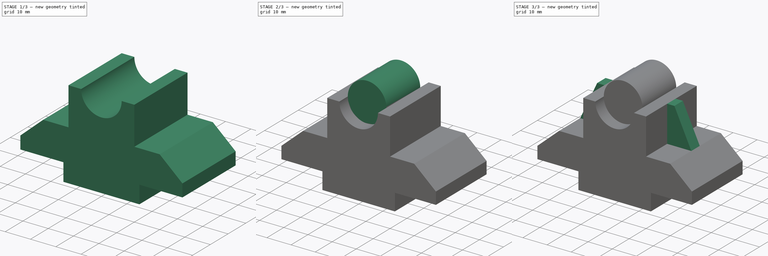
[diagram: build sequence overview — one tinted view per stage of 3, left to right]
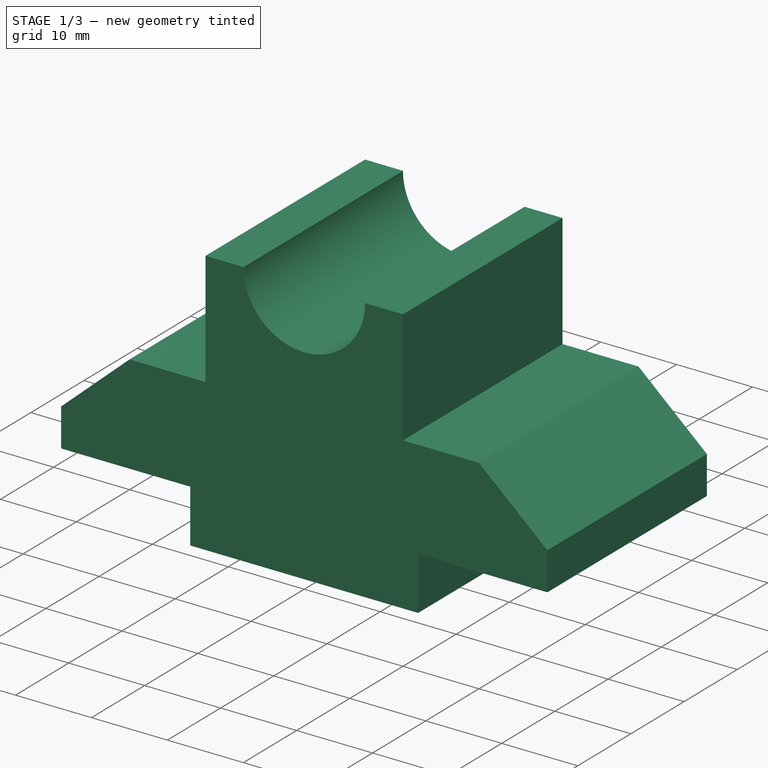
[diagram: stage 1 of 3 — iso view after this stage's code; geometry added in this stage tinted green]
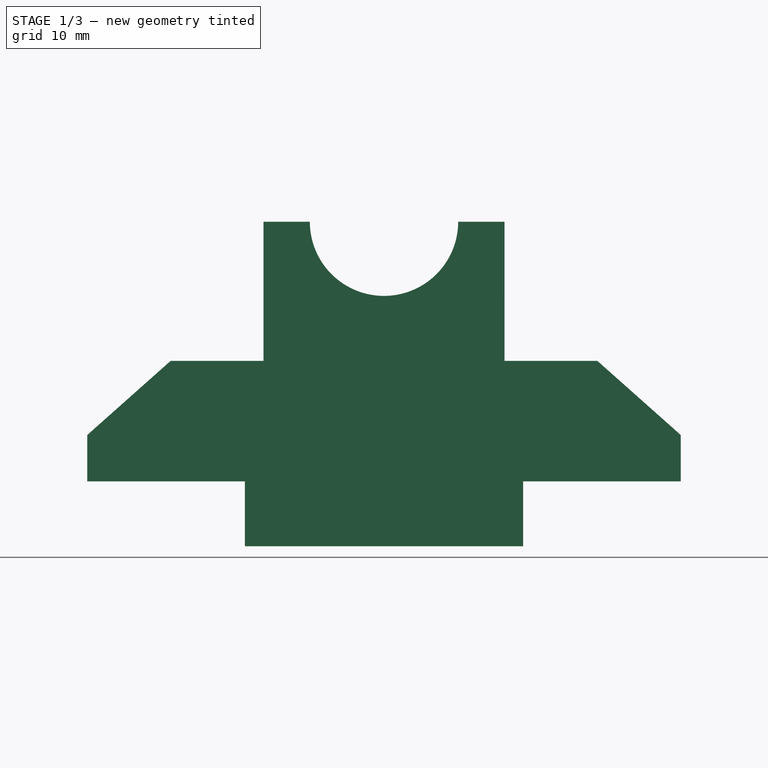
[diagram: stage 1 of 3 — front view after this stage's code; geometry added in this stage tinted green]
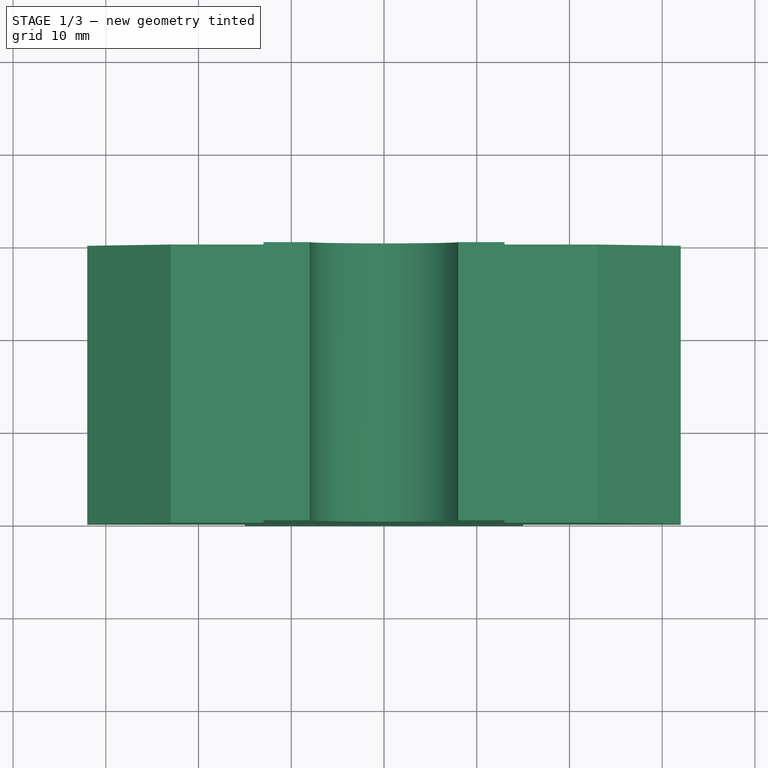
[diagram: stage 1 of 3 — top view after this stage's code; geometry added in this stage tinted green]
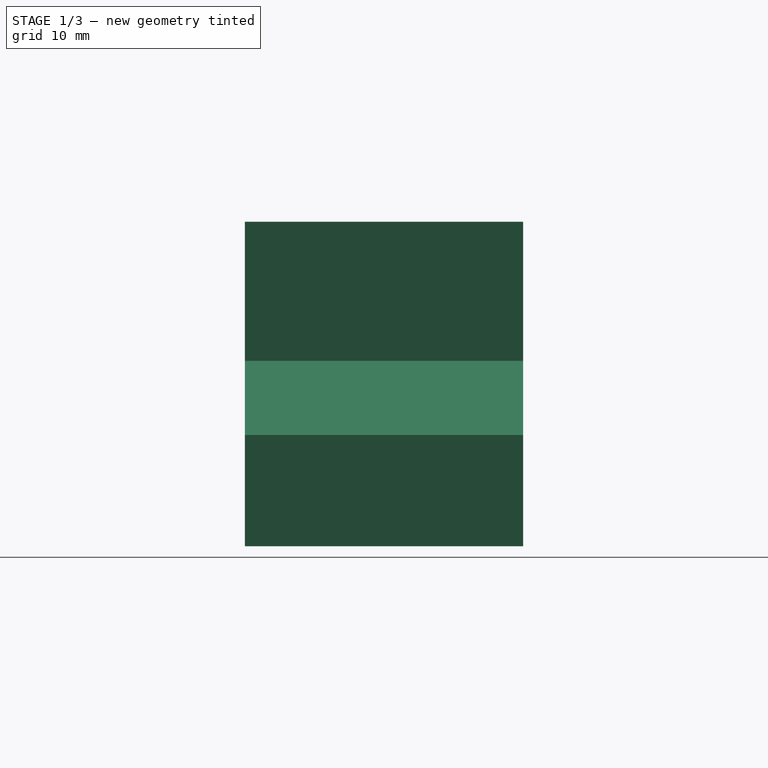
[diagram: stage 1 of 3 — right view after this stage's code; geometry added in this stage tinted green]
FCSTD DOCUMENT  (FreeCAD 1.0R39109 (Git))
Label: 7.4
License: All rights reserved
LicenseURL: https://en.wikipedia.org/wiki/All_rights_reserved
objects: Sketcher::SketchObject×7, PartDesign::Pad×3, PartDesign::Pocket×3, PartDesign::Body×1
note: 33 computed .brp shape members not serialized (recipe doc carries the construction recipe); baked Part::Feature solids carry a one-line shape summary decoded from their .brp

FEATURE [Sketcher::SketchObject] Sketch
  ArcFitTolerance = 1e-06
  AttachmentSupport = -> [XZ_Plane]
  FullyConstrained = true
  MakeInternals = false
  MapMode = 5
  Placement = pos=(0,0,0) rot=(1,0,0;1.5708rad)
  sketch-geometry (14):
    g0: LineSegment StartX=-15 StartY=-14.954 StartZ=0 EndX=15 EndY=-14.954 EndZ=0
    g1: LineSegment StartX=15 StartY=-14.954 StartZ=0 EndX=15 EndY=-7.95402 EndZ=0
    g2: LineSegment StartX=15 StartY=-7.95402 StartZ=0 EndX=32 EndY=-7.95402 EndZ=0
    g3: LineSegment StartX=32 StartY=-7.95402 StartZ=0 EndX=32 EndY=-2.95402 EndZ=0
    g4: LineSegment StartX=32 StartY=-2.95402 StartZ=0 EndX=23 EndY=5.04598 EndZ=0
    g5: LineSegment StartX=23 StartY=5.04598 StartZ=0 EndX=13 EndY=5.04598 EndZ=0
    g6: LineSegment StartX=13 StartY=5.04598 StartZ=0 EndX=13 EndY=20.046 EndZ=0
    g7: LineSegment StartX=13 StartY=20.046 StartZ=0 EndX=-13 EndY=20.046 EndZ=0
    g8: LineSegment StartX=-13 StartY=20.046 StartZ=0 EndX=-13 EndY=5.04598 EndZ=0
    g9: LineSegment StartX=-13 StartY=5.04598 StartZ=0 EndX=-23 EndY=5.04598 EndZ=0
    g10: LineSegment StartX=-23 StartY=5.04598 StartZ=0 EndX=-32 EndY=-2.95402 EndZ=0
    g11: LineSegment StartX=-32 StartY=-2.95402 StartZ=0 EndX=-32 EndY=-7.95402 EndZ=0
    g12: LineSegment StartX=-32 StartY=-7.95402 StartZ=0 EndX=-15 EndY=-7.95402 EndZ=0
    g13: LineSegment StartX=-15 StartY=-7.95402 StartZ=0 EndX=-15 EndY=-14.954 EndZ=0
  constraints (40):
    c: Coincident(g0,g1)
    c: Coincident(g1,g2)
    c: Coincident(g2,g3)
    c: Coincident(g3,g4)
    c: Coincident(g4,g5)
    c: Coincident(g5,g6)
    c: Coincident(g6,g7)
    c: Coincident(g7,g8)
    c: Coincident(g8,g9)
    c: Coincident(g9,g10)
    c: Coincident(g10,g11)
    c: Coincident(g11,g12)
    c: Coincident(g12,g13)
    c: Coincident(g13,g0)
    c: Horizontal(g9,g8)
    c: Horizontal(g8,g5)
    c: Horizontal(g5,g4)
    c: Horizontal(g11,g12)
    c: Horizontal(g12,g1)
    c: Horizontal(g1,g2)
    c: Symmetric(g0,g0,g-2)
    c: Symmetric(g7,g6,g-2)
    c: Vertical(g12,g0)
    c: Vertical(g0,g1)
    c: DistanceX(g0,g0) = 30
    c: DistanceY(g13,g13) = 7
    c: DistanceX(g2,g2) = 17
    c: DistanceX(g12,g12) = 17
    c: Distance(g11,g11) = 5
    c: DistanceY(g3,g3) = 5
    c: Vertical(g11,g10)
    c: Vertical(g3,g2)
    c: DistanceX(g7,g7) = 26
    c: Distance(g6,g6) = 15
    c: Vertical(g5,g6)
    c: Vertical(g7,g8)
    c: DistanceX(g9,g9) = 10
    c: DistanceX(g5,g5) = 10
    c: DistanceY(g0,g8) = 20
    c: Block(g7)
FEATURE [PartDesign::Pad] Pad
  Direction = (0,-1,2e-16)
  Length = 30
  Length2 = 10
  Placement = pos=(0,0,0) rot=(1,0,0;1.5708rad)
  Profile = -> Sketch
  ReferenceAxis = -> Sketch [N_Axis]
  Refine = true
  Suppressed = false
  Type = 0
FEATURE [Sketcher::SketchObject] Sketch001
  ArcFitTolerance = 1e-06
  AttachmentSupport = -> [Pad]
  FullyConstrained = true
  MakeInternals = false
  MapMode = 5
  Placement = pos=(0,-30,0) rot=(1,0,0;1.5708rad)
FEATURE [Sketcher::SketchObject] Sketch002
  ArcFitTolerance = 1e-06
  AttachmentSupport = -> [Pad]
  ExternalGeometry = -> [Pad]
  FullyConstrained = true
  MakeInternals = false
  MapMode = 5
  Placement = pos=(0,-30,0) rot=(1,0,0;1.5708rad)
  sketch-geometry (1):
    g0: Circle CenterX=0 CenterY=20.046 CenterZ=0 NormalX=0 NormalY=0 NormalZ=1 AngleXU=0 Radius=8
  constraints (3):
    c: Diameter(g0) = 16
    c: PointOnObject(g0,g-2)
    c: Block(g0)
FEATURE [PartDesign::Pocket] Pocket
  BaseFeature = -> Pad
  Direction = (0,1,-2e-16)
  Length = 30
  Length2 = 5
  Placement = pos=(0,0,0) rot=(1,0,0;1.5708rad)
  Profile = -> Sketch002
  ReferenceAxis = -> Sketch002 [N_Axis]
  Refine = true
  Suppressed = false
  Type = 0
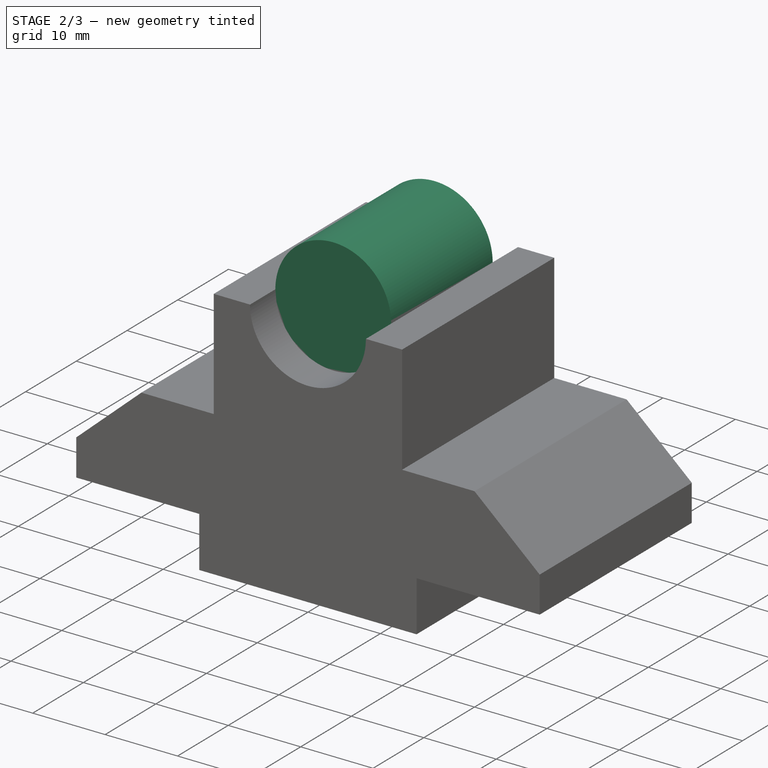
[diagram: stage 2 of 3 — iso view after this stage's code; geometry added in this stage tinted green]
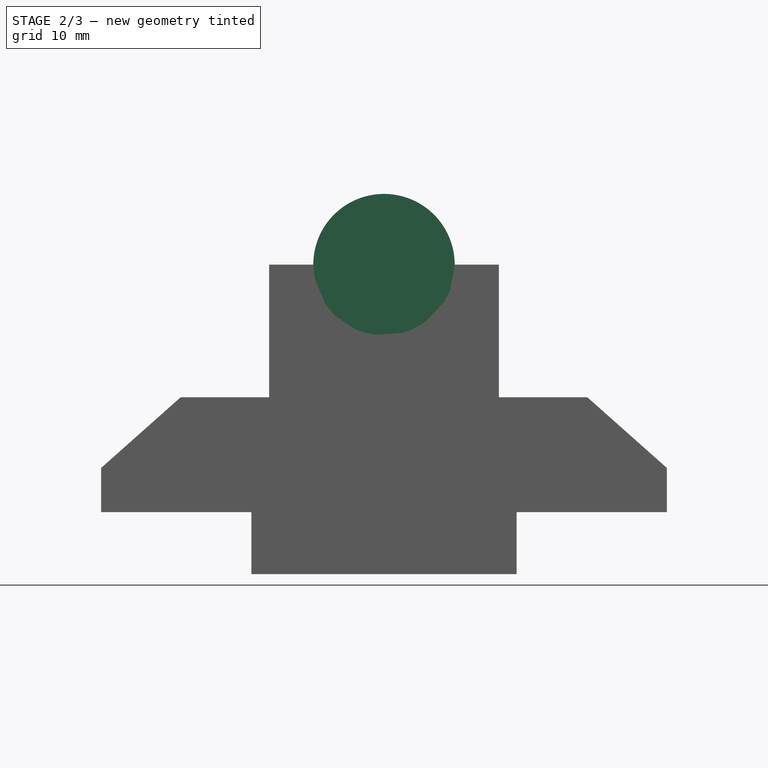
[diagram: stage 2 of 3 — front view after this stage's code; geometry added in this stage tinted green]
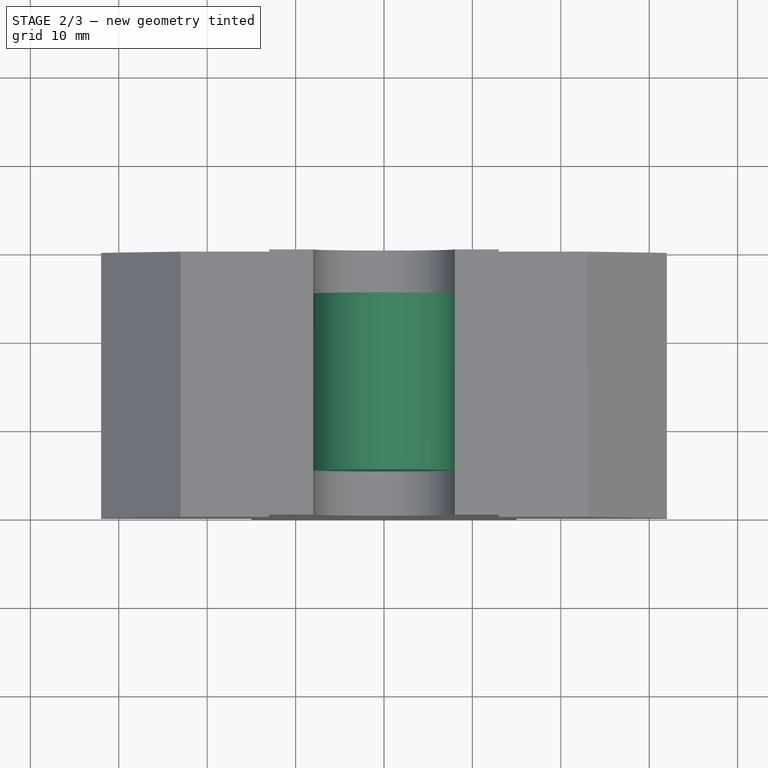
[diagram: stage 2 of 3 — top view after this stage's code; geometry added in this stage tinted green]
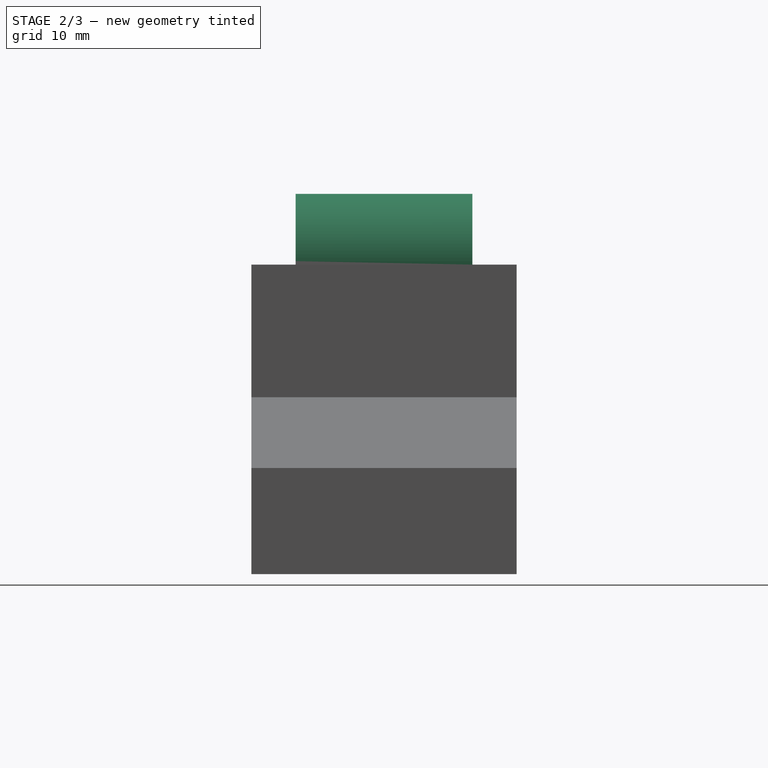
[diagram: stage 2 of 3 — right view after this stage's code; geometry added in this stage tinted green]
FEATURE [Sketcher::SketchObject] Sketch003
  ArcFitTolerance = 1e-06
  AttachmentSupport = -> [Pocket]
  ExternalGeometry = -> [Pocket]
  FullyConstrained = true
  MakeInternals = false
  MapMode = 5
  Placement = pos=(0,-30,0) rot=(1,0,0;1.5708rad)
  sketch-geometry (1):
    g0: Circle CenterX=0 CenterY=20.046 CenterZ=0 NormalX=0 NormalY=0 NormalZ=1 AngleXU=0 Radius=8
  constraints (3):
    c: Coincident(g0,g-3)
    c: PointOnObject(g-3,g0)
    c: Block(g0)
FEATURE [PartDesign::Pad] Pad001
  BaseFeature = -> Pocket
  Direction = (0,-1,2e-16)
  Length = 25
  Length2 = 10
  Placement = pos=(0,0,0) rot=(1,0,0;1.5708rad)
  Profile = -> Sketch003 [Edge1]
  ReferenceAxis = -> Sketch003 [N_Axis]
  Refine = true
  Reversed = true
  Suppressed = false
  Type = 0
FEATURE [Sketcher::SketchObject] Sketch004
  ArcFitTolerance = 1e-06
  AttachmentSupport = -> [Pad001]
  ExternalGeometry = -> [Pad001]
  FullyConstrained = true
  MakeInternals = false
  MapMode = 5
  Placement = pos=(0,-30,7.4e-15) rot=(1,0,0;1.5708rad)
  sketch-geometry (1):
    g0: Circle CenterX=0 CenterY=20.046 CenterZ=0 NormalX=0 NormalY=0 NormalZ=1 AngleXU=0 Radius=8
  constraints (3):
    c: Coincident(g0,g-3)
    c: Equal(g0,g-3)
    c: Block(g0)
FEATURE [PartDesign::Pocket] Pocket001
  BaseFeature = -> Pad001
  Direction = (0,1,-2e-16)
  Length = 5
  Length2 = 5
  Placement = pos=(0,0,0) rot=(1,0,0;1.5708rad)
  Profile = -> Sketch004
  ReferenceAxis = -> Sketch004 [N_Axis]
  Refine = true
  Suppressed = false
  Type = 0
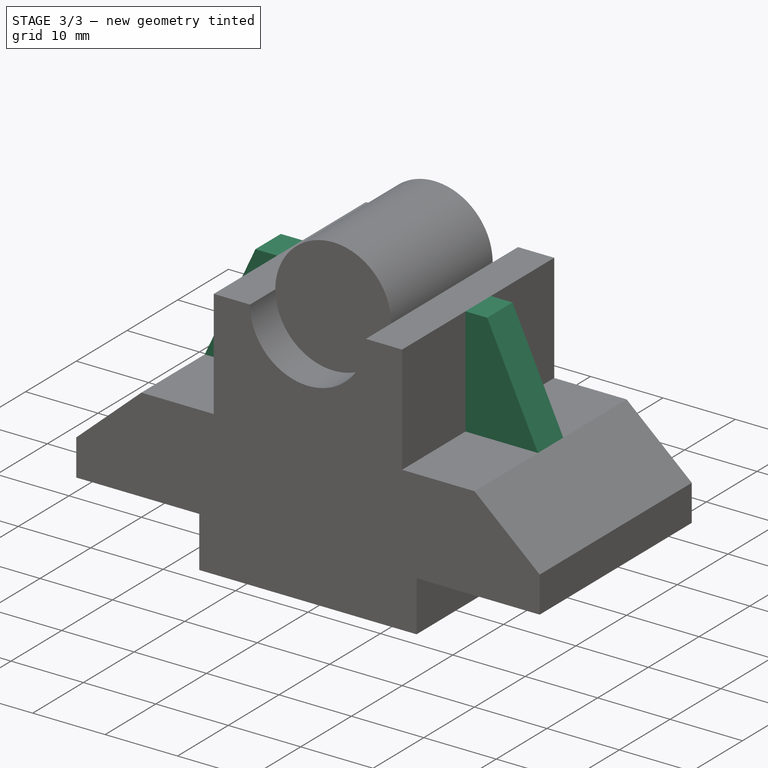
[diagram: stage 3 of 3 — iso view after this stage's code; geometry added in this stage tinted green]
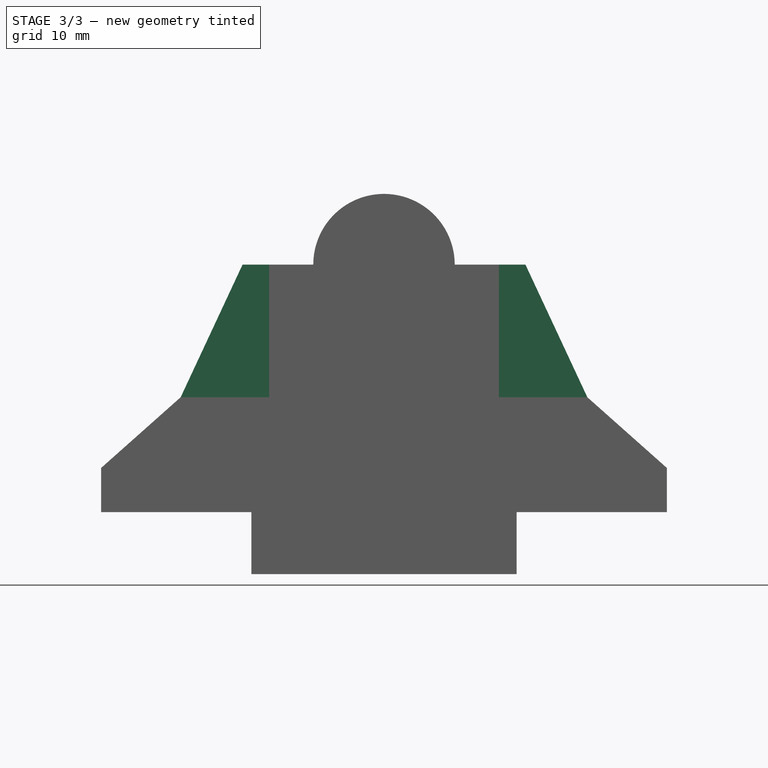
[diagram: stage 3 of 3 — front view after this stage's code; geometry added in this stage tinted green]
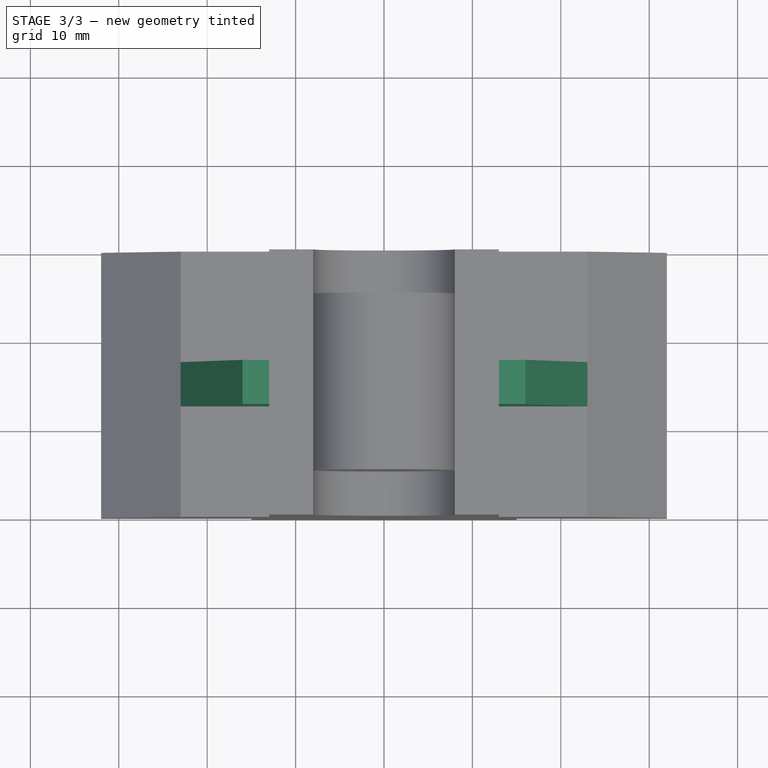
[diagram: stage 3 of 3 — top view after this stage's code; geometry added in this stage tinted green]
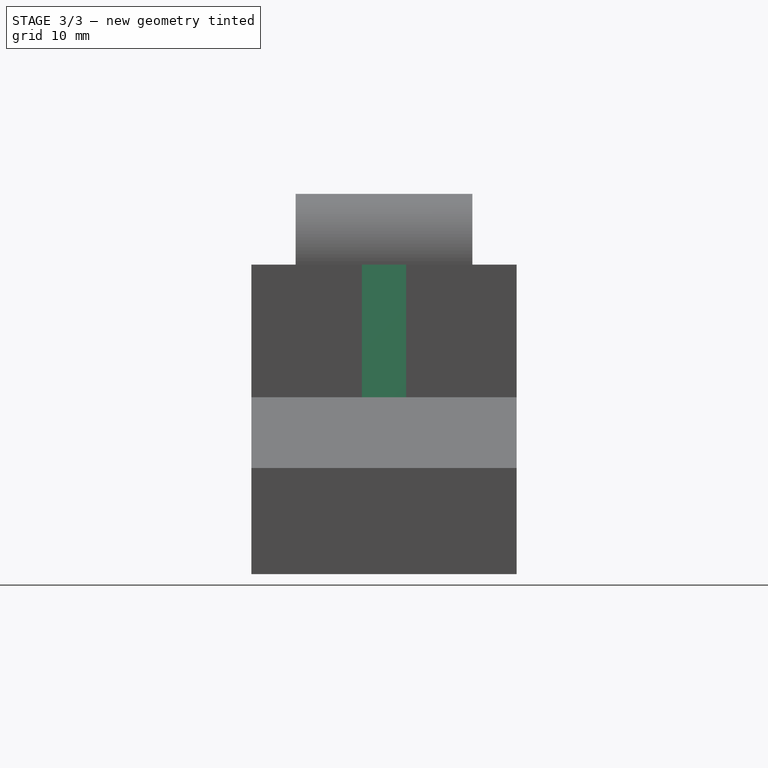
[diagram: stage 3 of 3 — right view after this stage's code; geometry added in this stage tinted green]
FEATURE [Sketcher::SketchObject] Sketch005
  ArcFitTolerance = 1e-06
  AttachmentSupport = -> [Pocket001]
  ExternalGeometry = -> [Pocket001]
  FullyConstrained = true
  MakeInternals = false
  MapMode = 5
  Placement = pos=(0,-30,7.4e-15) rot=(1,0,0;1.5708rad)
  sketch-geometry (8):
    g0: LineSegment StartX=-23 StartY=5.04598 StartZ=0 EndX=-13 EndY=5.04598 EndZ=0
    g1: LineSegment StartX=-13 StartY=5.04598 StartZ=0 EndX=-13 EndY=20.046 EndZ=0
    g2: LineSegment StartX=-13 StartY=20.046 StartZ=0 EndX=-16 EndY=20.046 EndZ=0
    g3: LineSegment StartX=-16 StartY=20.046 StartZ=0 EndX=-23 EndY=5.04598 EndZ=0
    g4: LineSegment StartX=23 StartY=5.04598 StartZ=0 EndX=13 EndY=5.04598 EndZ=0
    g5: LineSegment StartX=13 StartY=5.04598 StartZ=0 EndX=13 EndY=20.046 EndZ=0
    g6: LineSegment StartX=13 StartY=20.046 StartZ=0 EndX=16 EndY=20.046 EndZ=0
    g7: LineSegment StartX=16 StartY=20.046 StartZ=0 EndX=23 EndY=5.04598 EndZ=0
  constraints (18):
    c: Coincident(g-3,g0)
    c: Coincident(g0,g-4)
    c: Coincident(g0,g1)
    c: Coincident(g1,g-4)
    c: Coincident(g1,g2)
    c: Coincident(g2,g3)
    c: Coincident(g3,g0)
    c: Horizontal(g2,g1)
    c: DistanceX(g2,g2) = 3
    c: Coincident(g-6,g4)
    c: Coincident(g4,g-6)
    c: Coincident(g4,g5)
    c: Coincident(g5,g-5)
    c: Coincident(g5,g6)
    c: Coincident(g6,g7)
    c: Coincident(g7,g4)
    c: DistanceX(g6,g6) = 3
    c: Horizontal(g6,g5)
FEATURE [PartDesign::Pad] Pad002
  BaseFeature = -> Pocket001
  Direction = (0,-1,2e-16)
  Length = 17.5
  Length2 = 10
  Placement = pos=(0,0,0) rot=(1,0,0;1.5708rad)
  Profile = -> Sketch005
  ReferenceAxis = -> Sketch005 [N_Axis]
  Refine = true
  Reversed = true
  Suppressed = false
  Type = 0
FEATURE [Sketcher::SketchObject] Sketch006
  ArcFitTolerance = 1e-06
  AttachmentSupport = -> [Pad002]
  ExternalGeometry = -> [Pad002]
  FullyConstrained = true
  MakeInternals = false
  MapMode = 5
  Placement = pos=(0,-30,8.5e-15) rot=(1,0,0;1.5708rad)
  sketch-geometry (8):
    g0: LineSegment StartX=-23 StartY=5.04598 StartZ=0 EndX=-16 EndY=20.046 EndZ=0
    g1: LineSegment StartX=-16 StartY=20.046 StartZ=0 EndX=-13 EndY=20.046 EndZ=0
    g2: LineSegment StartX=-13 StartY=20.046 StartZ=0 EndX=-13 EndY=5.04598 EndZ=0
    g3: LineSegment StartX=-13 StartY=5.04598 StartZ=0 EndX=-23 EndY=5.04598 EndZ=0
    g4: LineSegment StartX=23 StartY=5.04598 StartZ=0 EndX=16 EndY=20.046 EndZ=0
    g5: LineSegment StartX=16 StartY=20.046 StartZ=0 EndX=13 EndY=20.046 EndZ=0
    g6: LineSegment StartX=13 StartY=20.046 StartZ=0 EndX=13 EndY=5.04598 EndZ=0
    g7: LineSegment StartX=13 StartY=5.04598 StartZ=0 EndX=23 EndY=5.04598 EndZ=0
  constraints (21):
    c: Coincident(g-3,g0)
    c: Coincident(g0,g1)
    c: Coincident(g1,g2)
    c: Vertical(g2)
    c: Coincident(g2,g3)
    c: Coincident(g3,g0)
    c: DistanceX(g1,g1) = 3
    c: Horizontal(g1,g0)
    c: Horizontal(g0,g2)
    c: Coincident(g4,g5)
    c: Coincident(g5,g6)
    c: Vertical(g6)
    c: Coincident(g6,g7)
    c: Coincident(g7,g4)
    c: Block(g2)
    c: Block(g6)
    c: Block(g0)
    c: Block(g1)
    c: Block(g3)
    c: Block(g7)
    c: Block(g5)
FEATURE [PartDesign::Pocket] Pocket002
  BaseFeature = -> Pad002
  Direction = (0,1,-2e-16)
  Length = 12.5
  Length2 = 5
  Placement = pos=(0,0,0) rot=(1,0,0;1.5708rad)
  Profile = -> Sketch006
  ReferenceAxis = -> Sketch006 [N_Axis]
  Refine = true
  Suppressed = false
  Type = 0
FEATURE [PartDesign::Body] Body  label="Тело"
  AllowCompound = false
  Group = -> [Sketch,Pad,Sketch001,Sketch002,Pocket,Sketch003,Pad001,Sketch004,Pocket001,Sketch005,Pad002,Sketch006,Pocket002]
  Origin = -> Origin
  Tip = -> Pocket002
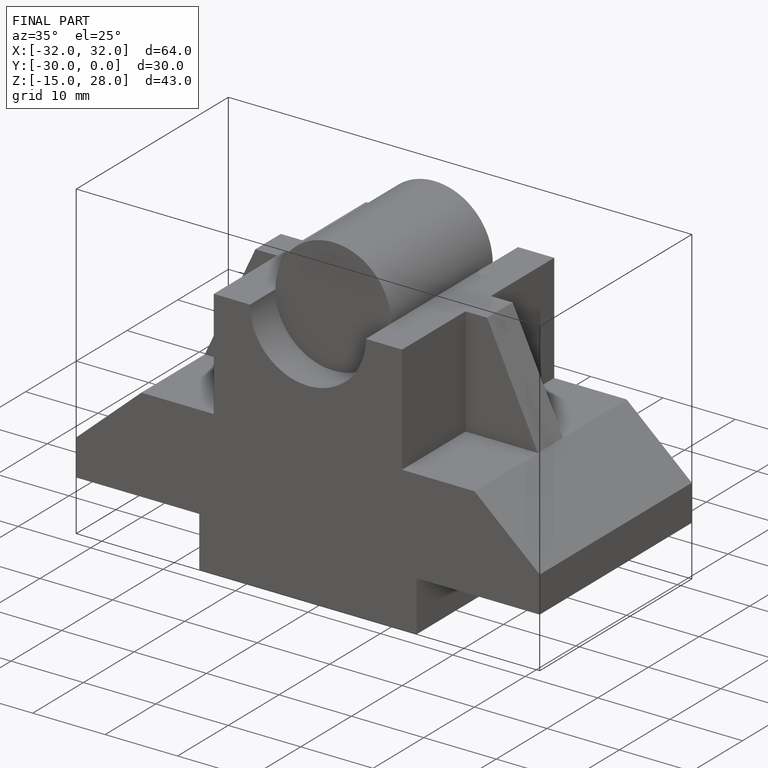
[diagram: finished part — iso view with bounding-box wireframe]
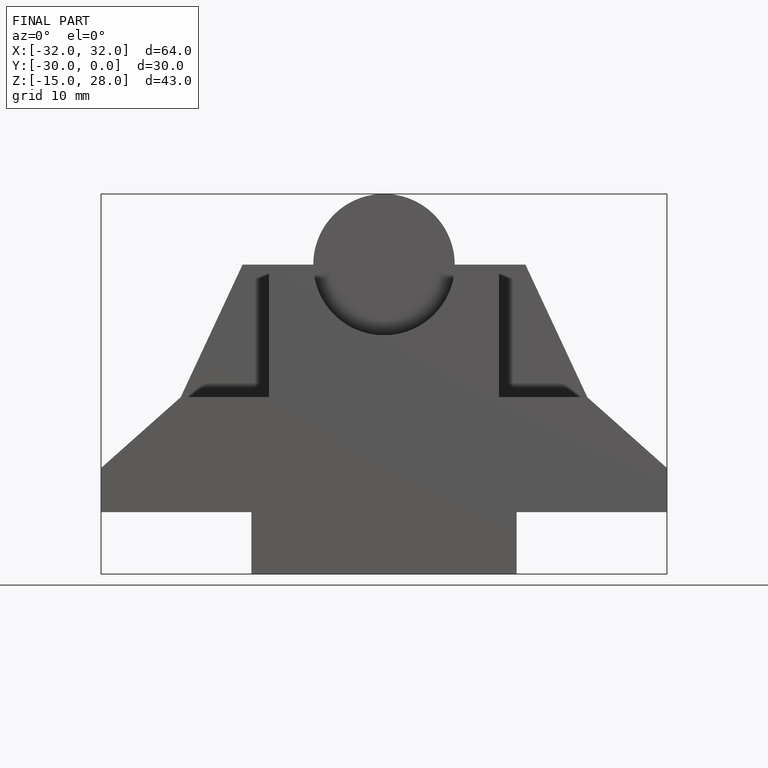
[diagram: finished part — front view with bounding-box wireframe]
